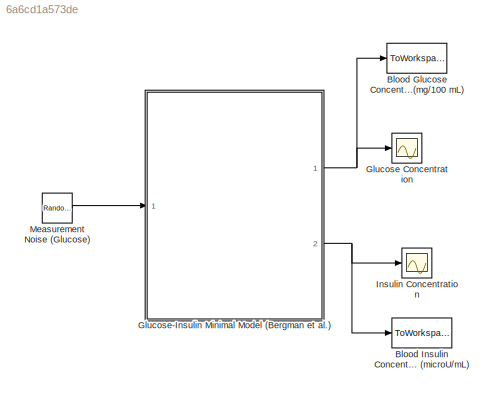
MODEL slx_6a6cd1a573de
KIND model
BLOCK [ToWorkspace] Blood Glucose Concentration (mg//100 mL)
  Decimation = 100
  MaxDataPoints = inf
  Ports = [1]
  SampleTime = -1
  VariableName = x
BLOCK [ToWorkspace] Blood Insulin Concentration (microU//mL)
  Decimation = 100
  MaxDataPoints = inf
  Ports = [1]
  SampleTime = -1
  VariableName = y
BLOCK [Scope] Glucose Concentration
  Decimation = 100
  Floating = off
  MaxDataPoints = 60
  NumInputPorts = 1
  Ports = [1]
  SampleTime = 0
  ShowLegends = off
  TickLabels = on
  TimeRange = 60
  YMax = 300
  YMin = 0
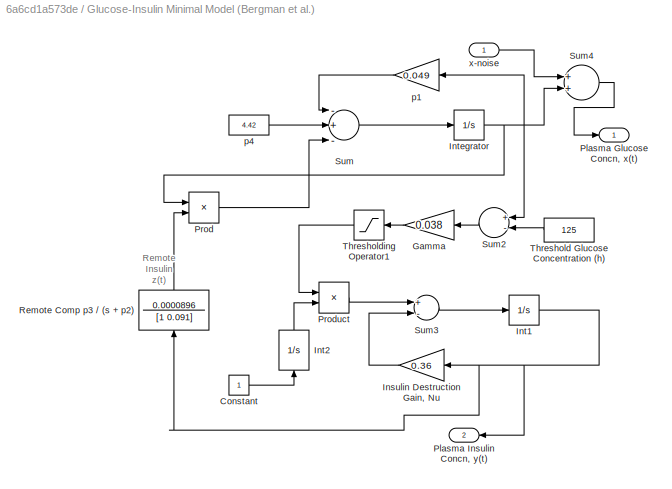
BLOCK [SubSystem] Glucose-Insulin Minimal Model (Bergman et al.)
  FunctionWithSeparateData = off
  MaskHideContents = off
  MinAlgLoopOccurrences = off
  Opaque = off
  Ports = [1, 2]
  PropExecContextOutsideSubsystem = off
  RTWSystemCode = Auto
  RequestExecContextInheritance = off
BLOCK [Constant] Glucose-Insulin Minimal Model (Bergman et al.)/Constant
BLOCK [Gain] Glucose-Insulin Minimal Model (Bergman et al.)/Gamma
  Gain = 0.038
BLOCK [Gain] Glucose-Insulin Minimal Model (Bergman et al.)/Insulin Destruction Gain, Nu
  Gain = 0.36
BLOCK [Integrator] Glucose-Insulin Minimal Model (Bergman et al.)/Int1
  InitialCondition = 76
  Ports = [1, 1]
BLOCK [Integrator] Glucose-Insulin Minimal Model (Bergman et al.)/Int2
  InitialCondition = 0.0
  Ports = [1, 1]
BLOCK [Integrator] Glucose-Insulin Minimal Model (Bergman et al.)/Integrator
  InitialCondition = 260
  Ports = [1, 1]
BLOCK [Outport] Glucose-Insulin Minimal Model (Bergman et al.)/Plasma Glucose Concn, x(t)
  IconDisplay = Port number
BLOCK [Outport] Glucose-Insulin Minimal Model (Bergman et al.)/Plasma Insulin Concn, y(t)
  IconDisplay = Port number
  Port = 2
BLOCK [Product] Glucose-Insulin Minimal Model (Bergman et al.)/Prod
  Ports = [2, 1]
BLOCK [Product] Glucose-Insulin Minimal Model (Bergman et al.)/Product
  Ports = [2, 1]
BLOCK [TransferFcn] Glucose-Insulin Minimal Model (Bergman et al.)/Remote Comp p3 // (s + p2)
  Denominator = [1 0.091]
  Numerator = 0.0000896
BLOCK [Sum] Glucose-Insulin Minimal Model (Bergman et al.)/Sum
  Inputs = -+-
  Ports = [3, 1]
BLOCK [Sum] Glucose-Insulin Minimal Model (Bergman et al.)/Sum2
  Inputs = +-
  Ports = [2, 1]
BLOCK [Sum] Glucose-Insulin Minimal Model (Bergman et al.)/Sum3
  Inputs = +-
  Ports = [2, 1]
BLOCK [Sum] Glucose-Insulin Minimal Model (Bergman et al.)/Sum4
  Ports = [2, 1]
BLOCK [Constant] Glucose-Insulin Minimal Model (Bergman et al.)/Threshold Glucose Concentration (h)
  Value = 125
BLOCK [Saturate] Glucose-Insulin Minimal Model (Bergman et al.)/Thresholding Operator1
  InputPortMap = u0
  LowerLimit = 0
  Ports = [1, 1]
  UpperLimit = 100000
BLOCK [Gain] Glucose-Insulin Minimal Model (Bergman et al.)/p1
  Gain = 0.049
BLOCK [Constant] Glucose-Insulin Minimal Model (Bergman et al.)/p4
  Value = 4.42
BLOCK [Inport] Glucose-Insulin Minimal Model (Bergman et al.)/x-noise
  IconDisplay = Port number
BLOCK [Scope] Insulin Concentration
  Decimation = 100
  Floating = off
  MaxDataPoints = 60
  NumInputPorts = 1
  Ports = [1]
  SampleTime = 0
  ShowLegends = off
  TickLabels = on
  TimeRange = 60
  YMax = 80
  YMin = -20
BLOCK [RandomNumber] Measurement Noise (Glucose)
  SampleTime = 0
  Seed = 37
  Variance = 25
ANNOTATION Glucose-Insulin Minimal Model (Bergman et al.): Remote Insulin z(t)
LINE Glucose-Insulin Minimal Model (Bergman et al.)/Constant:1 -> Glucose-Insulin Minimal Model (Bergman et al.)/Int2:1
LINE Glucose-Insulin Minimal Model (Bergman et al.)/Gamma:1 -> Glucose-Insulin Minimal Model (Bergman et al.)/Thresholding Operator1:1
LINE Glucose-Insulin Minimal Model (Bergman et al.)/Insulin Destruction Gain, Nu:1 -> Glucose-Insulin Minimal Model (Bergman et al.)/Sum3:2
NET Glucose-Insulin Minimal Model (Bergman et al.)/Int1:1 -> Glucose-Insulin Minimal Model (Bergman et al.)/Insulin Destruction Gain, Nu:1, Glucose-Insulin Minimal Model (Bergman et al.)/Plasma Insulin Concn, y(t):1, Glucose-Insulin Minimal Model (Bergman et al.)/Remote Comp p3 // (s + p2):1
LINE Glucose-Insulin Minimal Model (Bergman et al.)/Int2:1 -> Glucose-Insulin Minimal Model (Bergman et al.)/Product:2
NET Glucose-Insulin Minimal Model (Bergman et al.)/Integrator:1 -> Glucose-Insulin Minimal Model (Bergman et al.)/Prod:1, Glucose-Insulin Minimal Model (Bergman et al.)/Sum2:1, Glucose-Insulin Minimal Model (Bergman et al.)/Sum4:2, Glucose-Insulin Minimal Model (Bergman et al.)/p1:1
LINE Glucose-Insulin Minimal Model (Bergman et al.)/Prod:1 -> Glucose-Insulin Minimal Model (Bergman et al.)/Sum:3
LINE Glucose-Insulin Minimal Model (Bergman et al.)/Product:1 -> Glucose-Insulin Minimal Model (Bergman et al.)/Sum3:1
LINE Glucose-Insulin Minimal Model (Bergman et al.)/Remote Comp p3 // (s + p2):1 -> Glucose-Insulin Minimal Model (Bergman et al.)/Prod:2
LINE Glucose-Insulin Minimal Model (Bergman et al.)/Sum2:1 -> Glucose-Insulin Minimal Model (Bergman et al.)/Gamma:1
LINE Glucose-Insulin Minimal Model (Bergman et al.)/Sum3:1 -> Glucose-Insulin Minimal Model (Bergman et al.)/Int1:1
LINE Glucose-Insulin Minimal Model (Bergman et al.)/Sum4:1 -> Glucose-Insulin Minimal Model (Bergman et al.)/Plasma Glucose Concn, x(t):1
LINE Glucose-Insulin Minimal Model (Bergman et al.)/Sum:1 -> Glucose-Insulin Minimal Model (Bergman et al.)/Integrator:1
LINE Glucose-Insulin Minimal Model (Bergman et al.)/Threshold Glucose Concentration (h):1 -> Glucose-Insulin Minimal Model (Bergman et al.)/Sum2:2
LINE Glucose-Insulin Minimal Model (Bergman et al.)/Thresholding Operator1:1 -> Glucose-Insulin Minimal Model (Bergman et al.)/Product:1
LINE Glucose-Insulin Minimal Model (Bergman et al.)/p1:1 -> Glucose-Insulin Minimal Model (Bergman et al.)/Sum:1
LINE Glucose-Insulin Minimal Model (Bergman et al.)/p4:1 -> Glucose-Insulin Minimal Model (Bergman et al.)/Sum:2
LINE Glucose-Insulin Minimal Model (Bergman et al.)/x-noise:1 -> Glucose-Insulin Minimal Model (Bergman et al.)/Sum4:1
NET Glucose-Insulin Minimal Model (Bergman et al.):1 -> Blood Glucose Concentration (mg//100 mL):1, Glucose Concentration:1
NET Glucose-Insulin Minimal Model (Bergman et al.):2 -> Blood Insulin Concentration (microU//mL):1, Insulin Concentration:1
LINE Measurement Noise (Glucose):1 -> Glucose-Insulin Minimal Model (Bergman et al.):1
note: NET lines group one-source signal fan-out (src -> all destinations, sorted); 1:1 wires keep LINE
